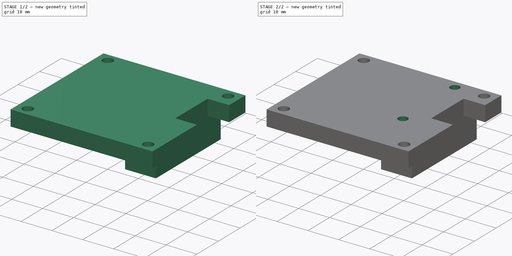
[diagram: build sequence overview — one tinted view per stage of 2, left to right]
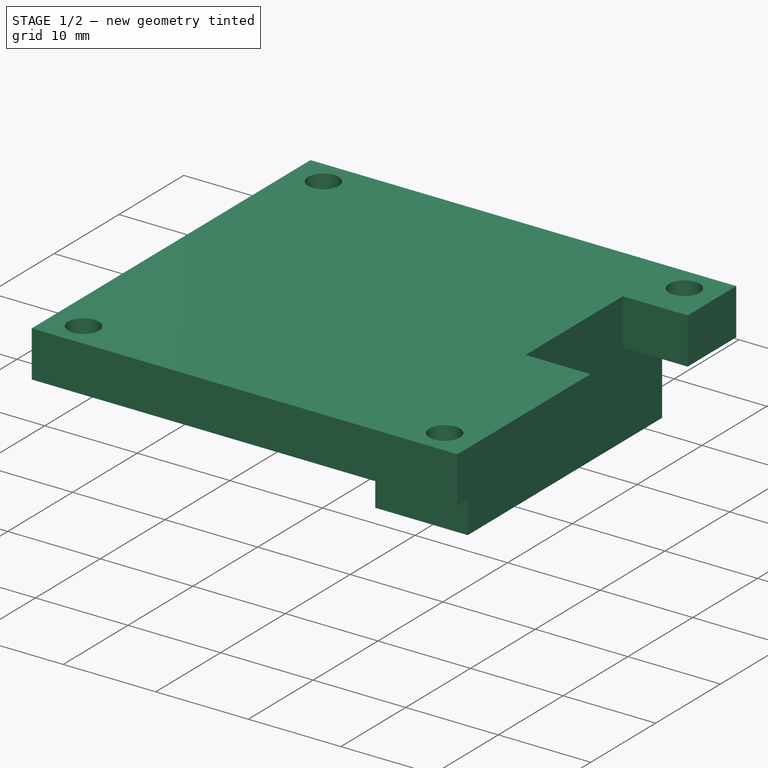
[diagram: stage 1 of 2 — iso view after this stage's code; geometry added in this stage tinted green]
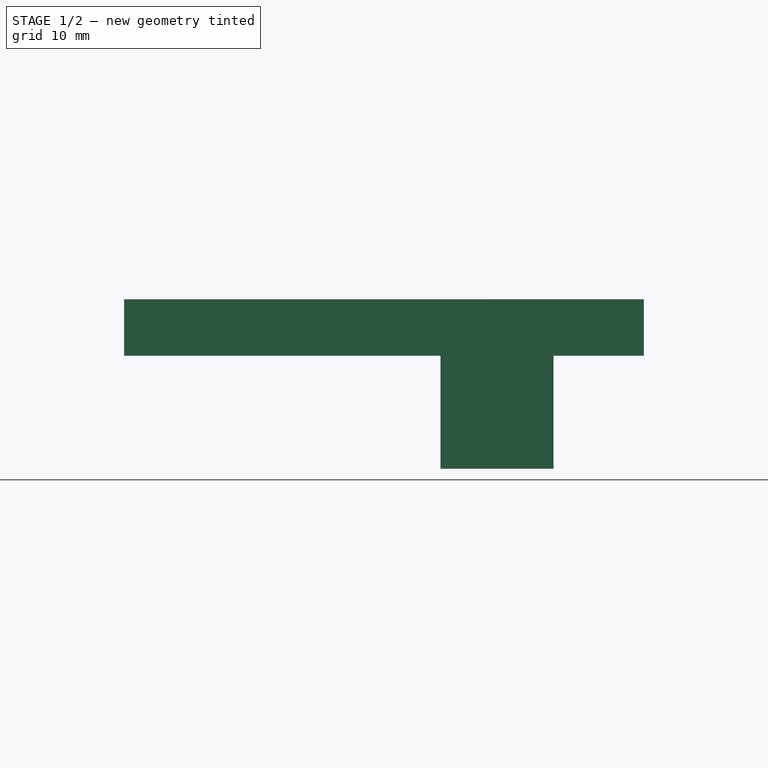
[diagram: stage 1 of 2 — front view after this stage's code; geometry added in this stage tinted green]
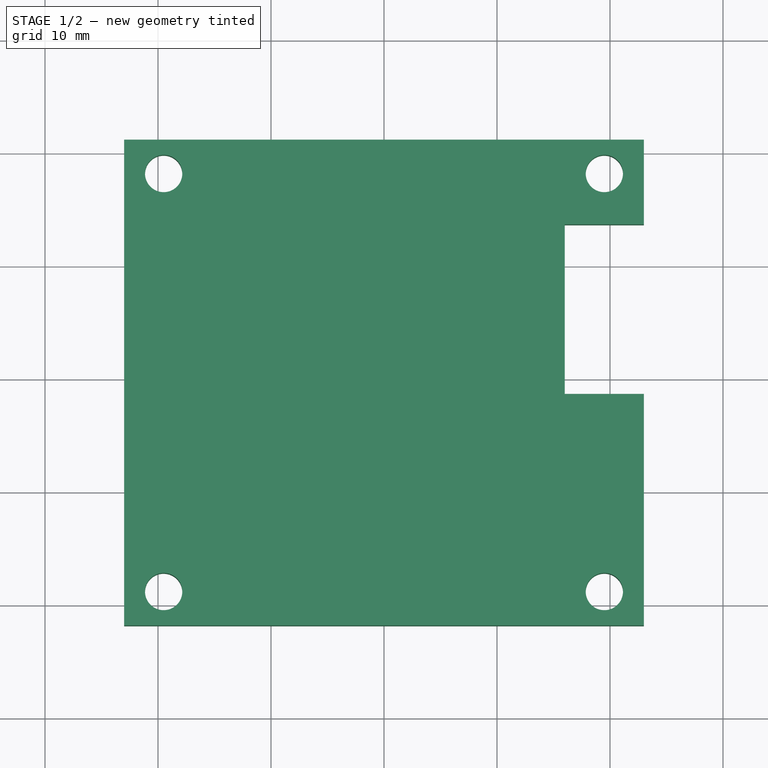
[diagram: stage 1 of 2 — top view after this stage's code; geometry added in this stage tinted green]
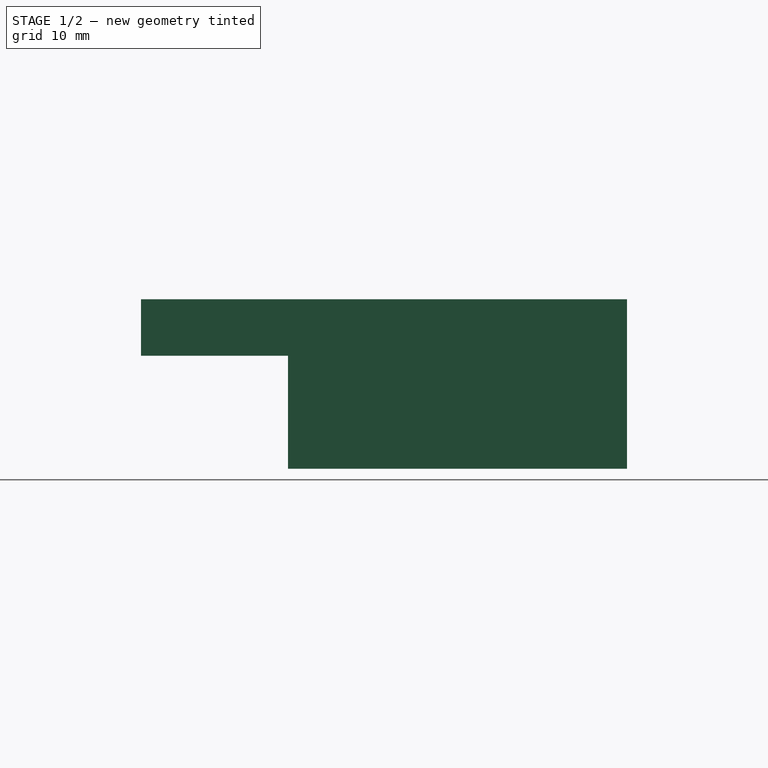
[diagram: stage 1 of 2 — right view after this stage's code; geometry added in this stage tinted green]
FCSTD DOCUMENT  (FreeCAD 1.0R39319 (Git))
Label: MotorPlate
License: All rights reserved
LicenseURL: https://en.wikipedia.org/wiki/All_rights_reserved
objects: Sketcher::SketchObject×3, PartDesign::Pad×2, PartDesign::SubShapeBinder×1, PartDesign::Pocket×1, PartDesign::Body×1, App::Part×1
note: 17 computed .brp shape members not serialized (recipe doc carries the construction recipe); baked Part::Feature solids carry a one-line shape summary decoded from their .brp
EXTERNAL_REF file=Chassis.FCStd obj=Part

FEATURE [PartDesign::SubShapeBinder] Binder  label="ChassisBody"
  BindCopyOnChange = 0
  BindMode = 0
  ClaimChildren = false
  Context = -> Part [Body.Binder.]
  Fuse = false
  MakeFace = true
  OffsetFill = false
  OffsetIntersection = false
  OffsetJoinType = 0
  OffsetOpenResult = false
  PartialLoad = false
  Placement = pos=(0,200,0) rot=(0,0,1;0rad)
  Refine = true
  Relative = true
  Support = -> [<external Chassis.FCStd>#Part[Body.]]
  _Version = 2
FEATURE [Sketcher::SketchObject] Sketch
  ArcFitTolerance = 1e-06
  AttachmentSupport = -> [XY_Plane001]
  ExternalGeometry = -> [Binder]
  FullyConstrained = true
  MakeInternals = false
  MapMode = 5
  sketch-geometry (12):
    g0: LineSegment StartX=-23 StartY=21 StartZ=0 EndX=23 EndY=21 EndZ=0
    g1: LineSegment StartX=23 StartY=21 StartZ=0 EndX=23 EndY=13.5 EndZ=0
    g2: LineSegment StartX=23 StartY=13.5 StartZ=0 EndX=16 EndY=13.5 EndZ=0
    g3: LineSegment StartX=16 StartY=13.5 StartZ=0 EndX=16 EndY=-1.5 EndZ=0
    g4: LineSegment StartX=16 StartY=-1.5 StartZ=0 EndX=23 EndY=-1.5 EndZ=0
    g5: LineSegment StartX=23 StartY=-1.5 StartZ=0 EndX=23 EndY=-22 EndZ=0
    g6: LineSegment StartX=23 StartY=-22 StartZ=0 EndX=-23 EndY=-22 EndZ=0
    g7: LineSegment StartX=-23 StartY=-22 StartZ=0 EndX=-23 EndY=21 EndZ=0
    g8: Circle CenterX=-19.5 CenterY=18 CenterZ=0 NormalX=0 NormalY=0 NormalZ=1 AngleXU=0 Radius=1.65
    g9: Circle CenterX=19.5 CenterY=18 CenterZ=0 NormalX=0 NormalY=0 NormalZ=1 AngleXU=0 Radius=1.65
    g10: Circle CenterX=-19.5 CenterY=-19 CenterZ=0 NormalX=0 NormalY=0 NormalZ=1 AngleXU=0 Radius=1.65
    g11: Circle CenterX=19.5 CenterY=-19 CenterZ=0 NormalX=0 NormalY=0 NormalZ=1 AngleXU=0 Radius=1.65
  constraints (24):
    c: Coincident(g0,g-4)
    c: Coincident(g0,g-11)
    c: Coincident(g1,g0)
    c: Coincident(g1,g-12)
    c: Coincident(g2,g1)
    c: Coincident(g2,g-12)
    c: Coincident(g3,g2)
    c: Coincident(g3,g-15)
    c: Coincident(g4,g3)
    c: Coincident(g4,g-16)
    c: Coincident(g5,g4)
    c: Coincident(g5,g-17)
    c: Coincident(g6,g5)
    c: Coincident(g6,g-6)
    c: Coincident(g7,g6)
    c: Coincident(g7,g0)
    c: Coincident(g8,g-8)
    c: Coincident(g9,g-13)
    c: Coincident(g10,g-7)
    c: Coincident(g11,g-18)
    c: Diameter(g9) = 3.3
    c: Equal(g9,g8)
    c: Equal(g8,g10)
    c: Equal(g10,g11)
FEATURE [PartDesign::Pad] Pad
  Direction = (0,0,1)
  Length = 5
  Length2 = 10
  Profile = -> Sketch
  ReferenceAxis = -> Sketch [N_Axis]
  Refine = true
  Reversed = true
  Suppressed = false
  Type = 0
FEATURE [Sketcher::SketchObject] Sketch001
  ArcFitTolerance = 1e-06
  AttachmentSupport = -> [Pad]
  ExternalGeometry = -> [Sketch]
  FullyConstrained = true
  MakeInternals = false
  MapMode = 5
  Placement = pos=(0,0,-5) rot=(1,0,0;3.14159rad)
  sketch-geometry (6):
    g0: LineSegment StartX=15 StartY=9 StartZ=0 EndX=5 EndY=9 EndZ=0
    g1: LineSegment StartX=5 StartY=9 StartZ=0 EndX=5 EndY=-21 EndZ=0
    g2: LineSegment StartX=5 StartY=-21 StartZ=0 EndX=15 EndY=-21 EndZ=0
    g3: LineSegment StartX=15 StartY=-21 StartZ=0 EndX=15 EndY=9 EndZ=0
    g4: GeomPoint [constr] X=10 Y=-6 Z=0
    g5: LineSegment [constr] StartX=16 StartY=-6 StartZ=0 EndX=-23 EndY=-6 EndZ=0
  constraints (16):
    c: Coincident(g0,g1)
    c: Coincident(g1,g2)
    c: Coincident(g2,g3)
    c: Coincident(g3,g0)
    c: Horizontal(g0)
    c: Horizontal(g2)
    c: Vertical(g1)
    c: Vertical(g3)
    c: Symmetric(g2,g0,g4)
    c: PointOnObject(g1,g-3)
    c: Symmetric(g-5,g-5,g5)
    c: PointOnObject(g5,g-4)
    c: Horizontal(g5)
    c: PointOnObject(g4,g5)
    c: DistanceX(g0,g0) = 10
    c: Distance(g0,g-4) = 28
FEATURE [PartDesign::Pad] Pad001
  BaseFeature = -> Pad
  Direction = (0,0,-1)
  Length = 10
  Length2 = 10
  Profile = -> Sketch001
  ReferenceAxis = -> Sketch001 [N_Axis]
  Refine = true
  Suppressed = false
  Type = 0
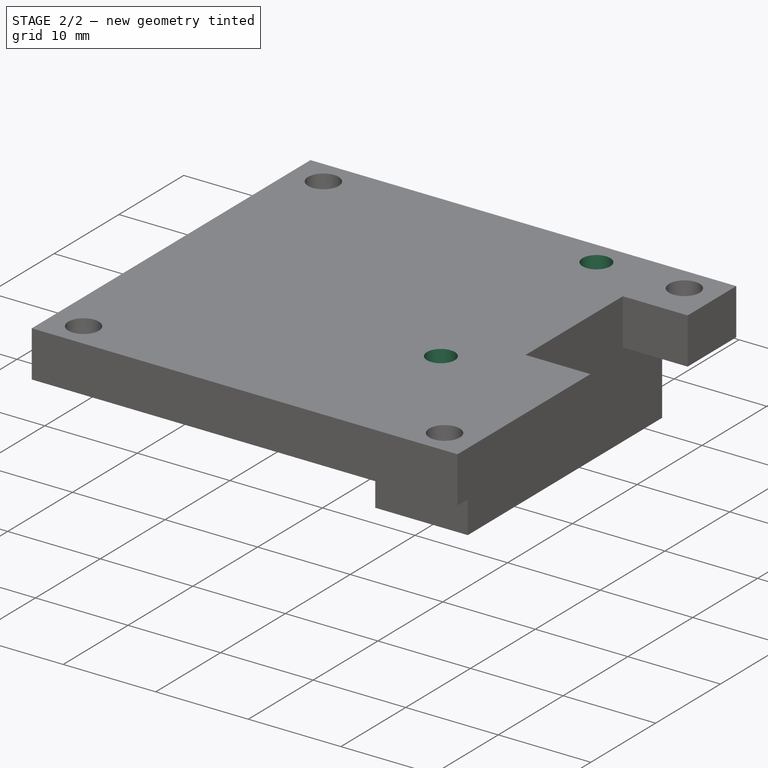
[diagram: stage 2 of 2 — iso view after this stage's code; geometry added in this stage tinted green]
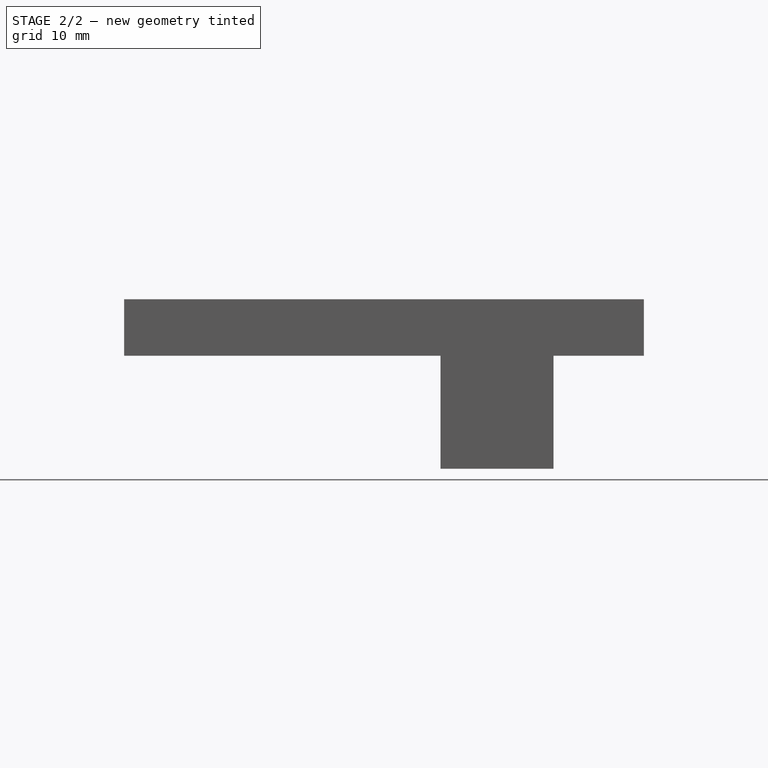
[diagram: stage 2 of 2 — front view after this stage's code; geometry added in this stage tinted green]
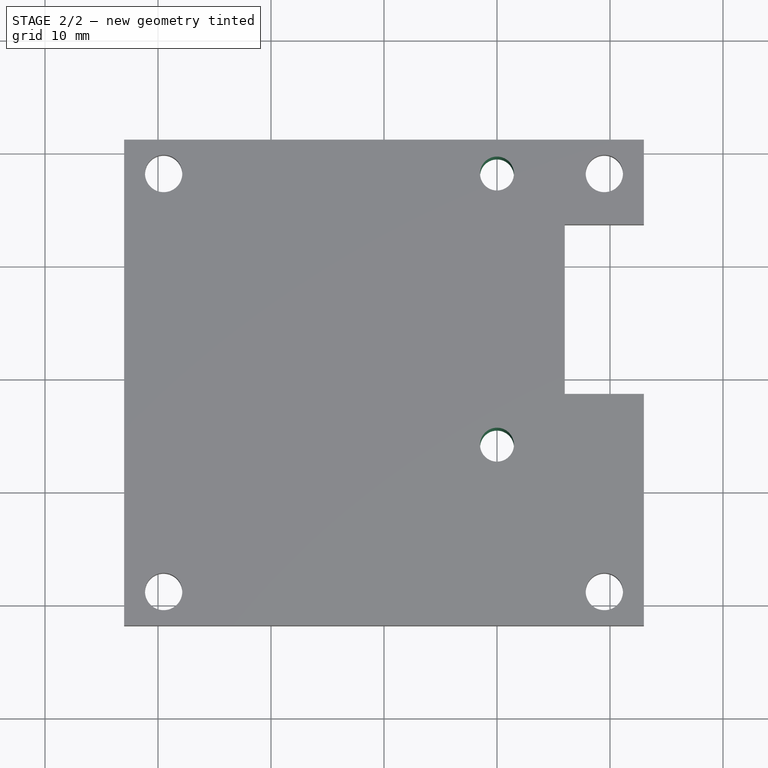
[diagram: stage 2 of 2 — top view after this stage's code; geometry added in this stage tinted green]
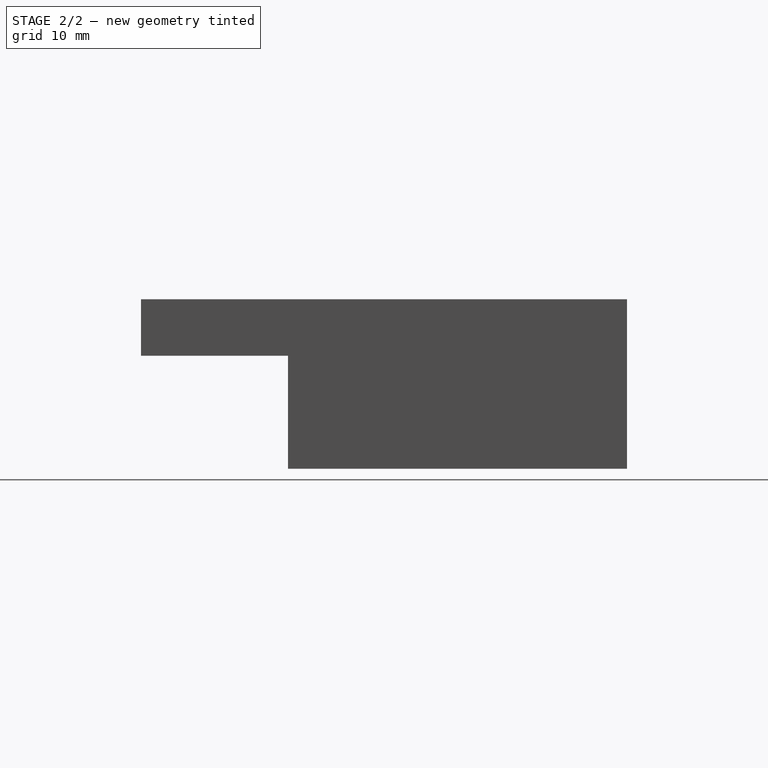
[diagram: stage 2 of 2 — right view after this stage's code; geometry added in this stage tinted green]
FEATURE [Sketcher::SketchObject] Sketch002
  ArcFitTolerance = 1e-06
  AttachmentSupport = -> [Pad001]
  ExternalGeometry = -> [Sketch001]
  FullyConstrained = true
  MakeInternals = false
  MapMode = 5
  Placement = pos=(0,0,-15) rot=(1,0,0;3.14159rad)
  sketch-geometry (3):
    g0: LineSegment [constr] StartX=10 StartY=9 StartZ=0 EndX=10 EndY=-21 EndZ=0
    g1: Circle CenterX=10 CenterY=6 CenterZ=0 NormalX=0 NormalY=0 NormalZ=1 AngleXU=0 Radius=1.5
    g2: Circle CenterX=10 CenterY=-18 CenterZ=0 NormalX=0 NormalY=0 NormalZ=1 AngleXU=0 Radius=1.5
  constraints (8):
    c: Symmetric(g-3,g-3,g0)
    c: Symmetric(g-4,g-4,g0)
    c: Diameter(g1) = 3
    c: PointOnObject(g1,g0)
    c: Diameter(g2) = 3
    c: PointOnObject(g2,g0)
    c: Distance(g1,g-3) = 3
    c: Distance(g2,g-4) = 3
FEATURE [PartDesign::Pocket] Pocket
  BaseFeature = -> Pad001
  Direction = (0,0,1)
  Length = 0
  Length2 = 5
  Profile = -> Sketch002
  ReferenceAxis = -> Sketch002 [N_Axis]
  Refine = true
  Suppressed = false
  Type = 3
  UpToFace = -> Pad001 [Face2]
FEATURE [PartDesign::Body] Body  label="MotorPlateBody"
  AllowCompound = false
  Group = -> [Binder,Sketch,Pad,Sketch001,Pad001,Sketch002,Pocket]
  Origin = -> Origin001
  Tip = -> Pocket
FEATURE [App::Part] Part  label="MotorPlatePart"
  Group = -> [Body]
  Origin = -> Origin
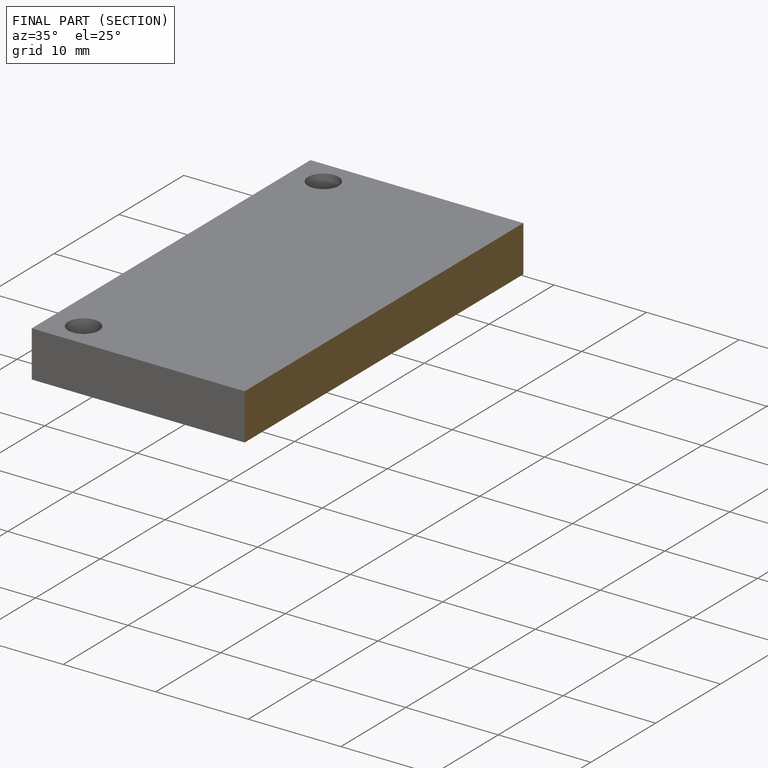
[diagram: finished part — half-section view (interior)]
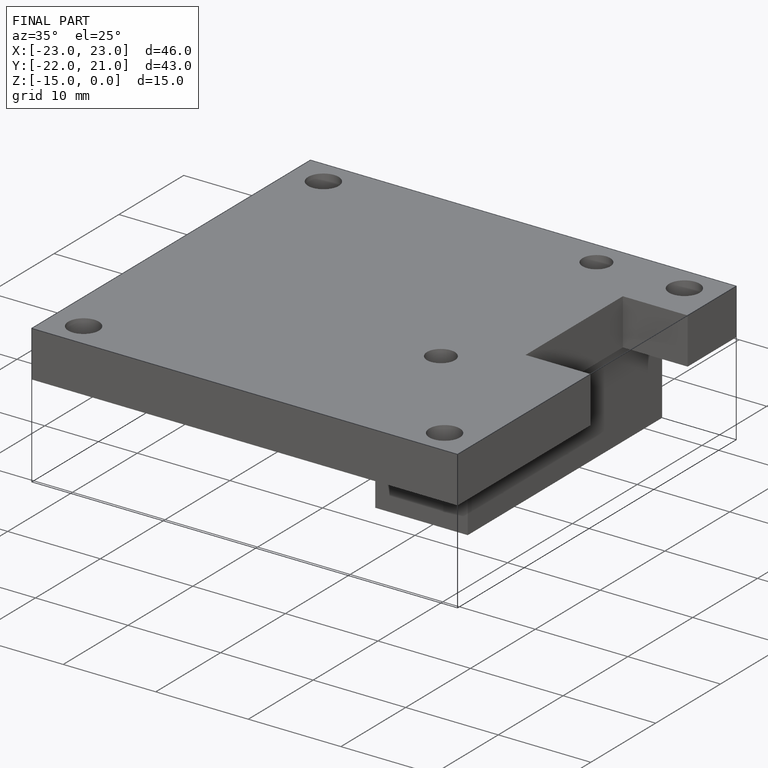
[diagram: finished part — iso view with bounding-box wireframe]
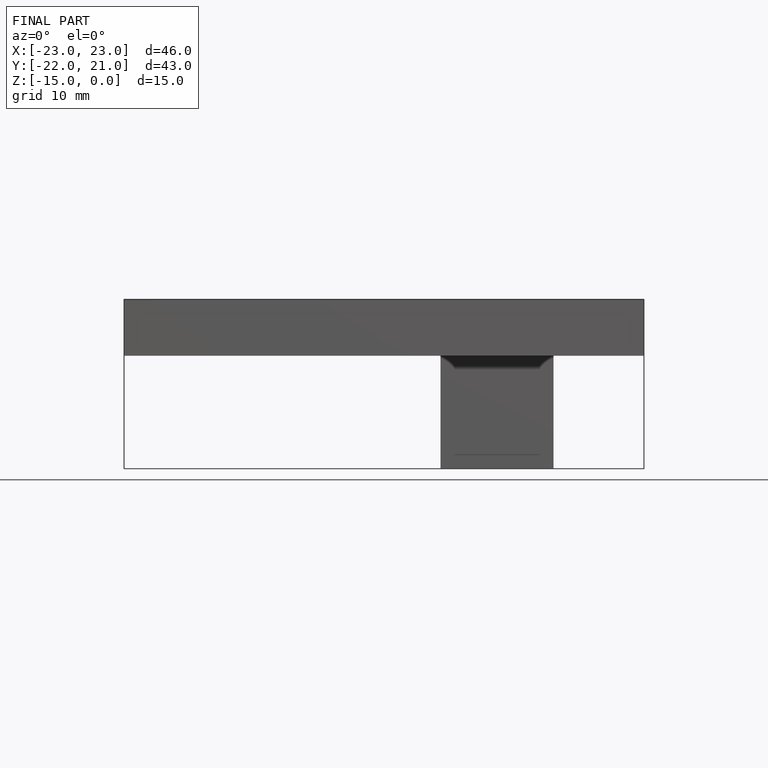
[diagram: finished part — front view with bounding-box wireframe]
